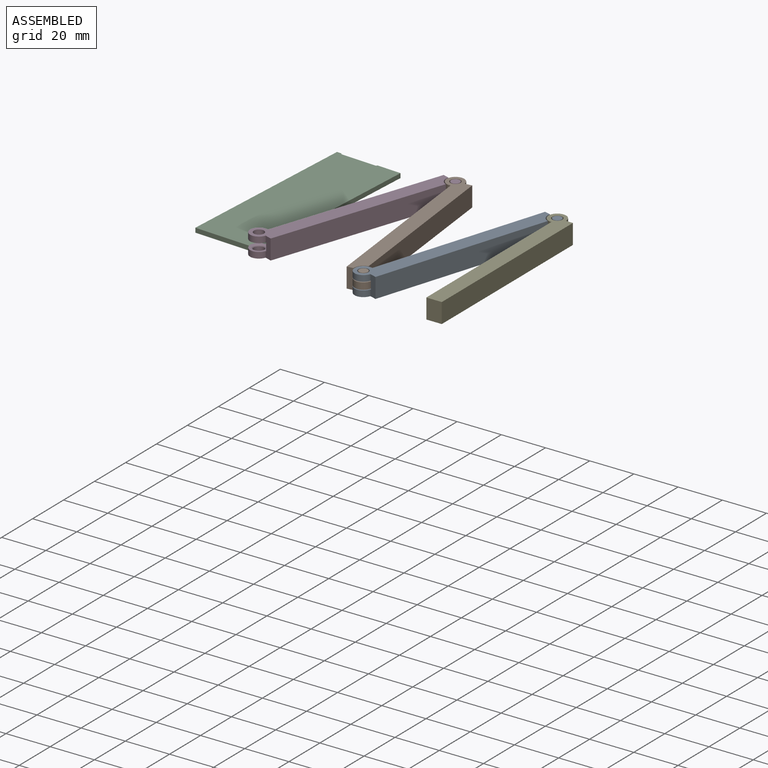
[diagram: assembled view]
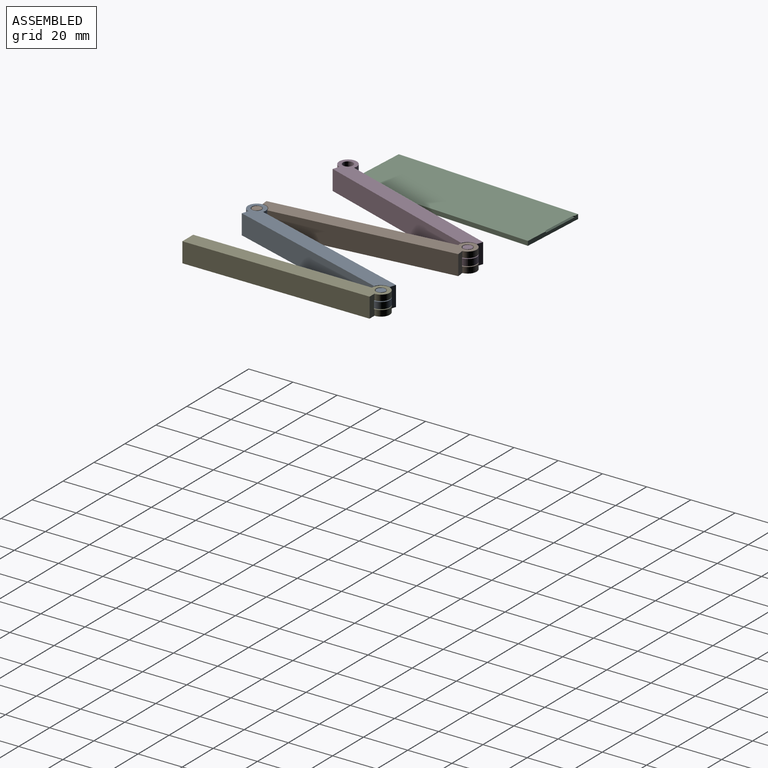
[diagram: assembled view, second angle]
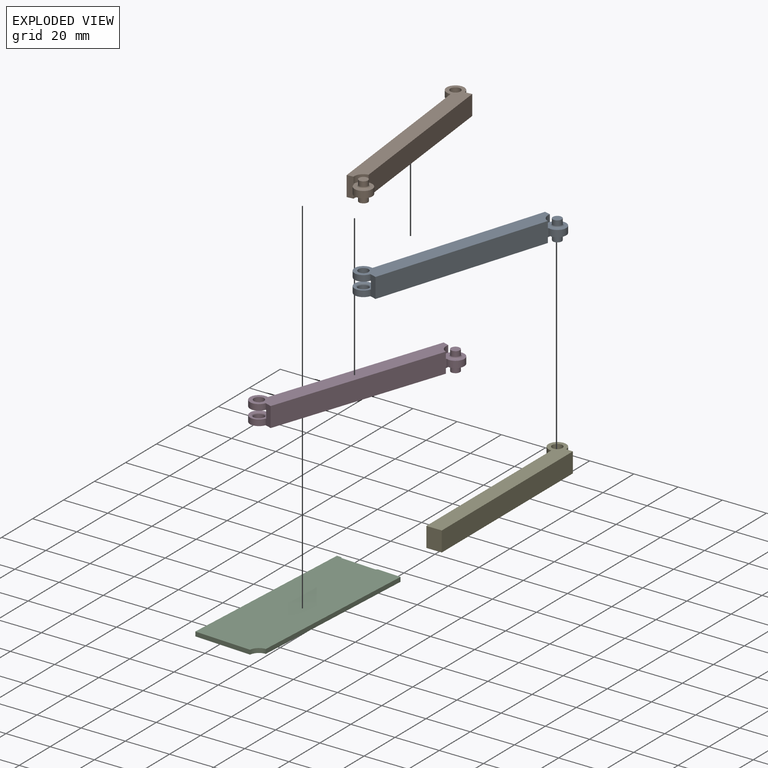
[diagram: exploded view]
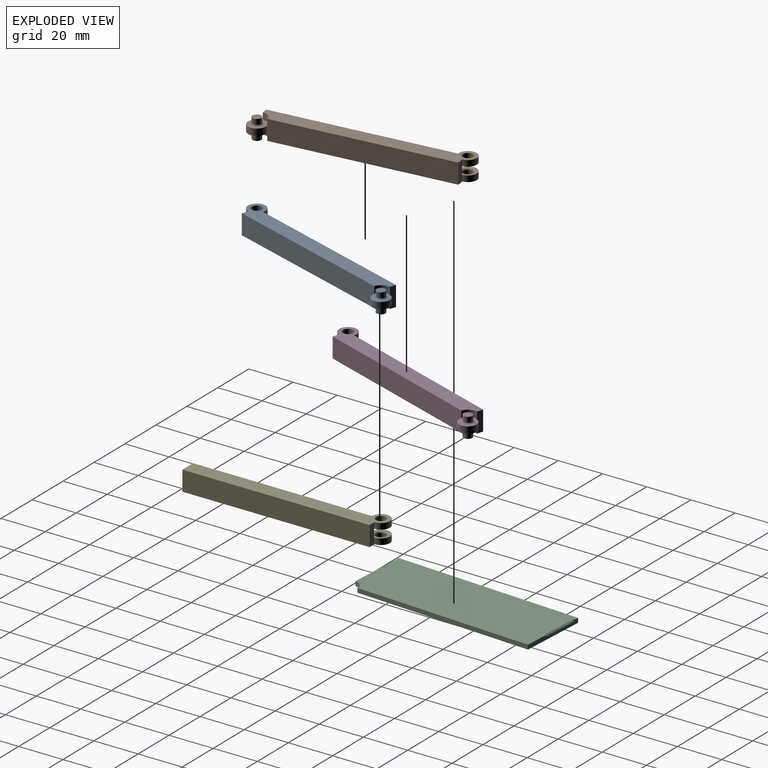
[diagram: exploded view, second angle]
ASSEMBLY  parts=5 mates=4
PART A: 26 faces, bbox 15.3x93x9 mm
  f0: plane 9x3.15mm, normal (0,1,0), area 27.3mm2, adj f1,f2,f4,f18,f19,f20,f22,f23
  f1: plane 88.85x11.15mm, normal (0,0,-1), area 601.9mm2, adj f0,f3,f4,f5,f10,f20,f21
  f2: plane 88.85x11.15mm, normal (0,0,1), area 601.9mm2, adj f0,f3,f4,f5,f9,f17,f18
  f3: plane 9x3.15mm, normal (0,-1,0), area 26.6mm2, adj f1,f2,f5,f6,f7,f8,f9,f10
  f4: plane 80.85x9mm, normal (-1,0,0), area 725.9mm2, adj f0,f1,f2,f6,f7,f8,f9,f10
  f5: plane 80.85x9mm, normal (1,0,0), area 726.6mm2, adj f1,f2,f3,f18,f19,f20,f22,f23
  f6: plane 8.3x8.3mm, normal (0,0,1), area 28.4mm2, adj f3,f4,f8,f9,f15
  f7: plane 8.3x8.3mm, normal (0,0,-1), area 28.4mm2, adj f3,f4,f8,f10,f16
  f8: cylinder r=4mm len=8mm, axis (0,0,-1), area 57.4mm2, adj f3,f4,f6,f7
  f9: cylinder r=4.3mm len=4.15mm, axis (0,0,1), area 19.4mm2, adj f2,f3,f4,f6
  f10: cylinder r=4.3mm len=4.15mm, axis (0,0,-1), area 19.4mm2, adj f1,f3,f4,f7
  f11: plane 4x4mm, normal (0,0,-1), area 12.6mm2, adj f12
  f12: cylinder r=2mm len=4mm, axis (0,0,-1), area 28.3mm2, adj f11,f16
  f13: cylinder r=2mm len=4mm, axis (0,0,-1), area 28.3mm2, adj f14,f15
  f14: plane 4x4mm, normal (0,0,1), area 12.6mm2, adj f13
  f15: torus R=2.75mm, axis (0,0,-1), area 16.8mm2, adj f6,f13
  f16: torus R=2.75mm, axis (0,0,1), area 16.8mm2, adj f7,f12
  f17: cylinder r=2.3mm len=4.6mm, axis (0,0,1), area 28.2mm2, adj f2,f25
  f18: cylinder r=4mm len=8mm, axis (0,0,1), area 51.7mm2, adj f0,f2,f5,f19
  f19: plane 8.3x8.3mm, normal (0,0,-1), area 22.9mm2, adj f0,f5,f18,f23,f25
  f20: cylinder r=4mm len=8mm, axis (0,0,-1), area 51.7mm2, adj f0,f1,f5,f22
  f21: cylinder r=2.3mm len=4.6mm, axis (0,0,-1), area 28.2mm2, adj f1,f24
  f22: plane 8.3x8.3mm, normal (0,0,1), area 22.9mm2, adj f0,f5,f20,f23,f24
  f23: cylinder r=4.3mm len=4.15mm, axis (0,0,-1), area 23.2mm2, adj f0,f5,f19,f22
  f24: torus R=3.05mm, axis (0,0,-1), area 19mm2, adj f21,f22
  f25: torus R=3.05mm, axis (0,0,1), area 19mm2, adj f17,f19
PART B: same geometry as A
PART C: 13 faces, bbox 30x84.7x2 mm
  f0: plane 84.7x30mm, normal (0,0,1), area 2527.7mm2, adj f3,f8,f9,f10,f11
  f1: plane 16.12x8.44mm, normal (0,0,-1), area 129.7mm2, adj f2,f12
  f2: plane 17.26x0.56mm, normal (0,0.71,-0.71), area 13.3mm2, adj f1,f4,f5,f6,f7,f9
  f3: cylinder r=4.3mm len=4.15mm, axis (0,0,1), area 12.9mm2, adj f0,f10,f11,f12
  f4: plane 0.56x0.56mm, normal (0.67,0.75,0), area 0.2mm2, adj f2,f5,f9,f12
  f5: plane 0.06x0.06mm, normal (0.99,0.11,0), area 0mm2, adj f2,f4,f12
  f6: plane 0.56x0.56mm, normal (-0.67,0.75,0), area 0.2mm2, adj f2,f7,f9,f12
  f7: plane 0.06x0.06mm, normal (-0.99,0.11,0), area 0mm2, adj f2,f6,f12
  f8: plane 84.7x2mm, normal (1,0,0), area 169.4mm2, adj f0,f9,f11,f12
  f9: plane 30x2mm, normal (0,1,0), area 50.3mm2, adj f0,f2,f4,f6,f8,f10,f12
  f10: plane 80.55x2mm, normal (-1,0,0), area 161.1mm2, adj f0,f3,f9,f12
  f11: plane 25.85x2mm, normal (0,-1,0), area 51.7mm2, adj f0,f3,f8,f12
  f12: plane 84.7x30mm, normal (0,0,-1), area 2388.7mm2, adj f1,f3,f4,f5,f6,f7,f8,f9
PART D: same geometry as A
PART E: 15 faces, bbox 11.2x88.9x9 mm
  f0: plane 9x3.15mm, normal (0,-1,0), area 27.3mm2, adj f3,f4,f5,f6,f7,f8,f9,f10
  f1: plane 80.85x9mm, normal (1,0,0), area 726.6mm2, adj f2,f3,f4,f6,f7,f8,f9,f10
  f2: plane 9x7mm, normal (0,1,0), area 63mm2, adj f1,f3,f4,f5
  f3: plane 88.85x11.15mm, normal (0,0,1), area 615.2mm2, adj f0,f1,f2,f5,f6,f12
  f4: plane 88.85x11.15mm, normal (0,0,-1), area 615.2mm2, adj f0,f1,f2,f5,f8,f11
  f5: plane 84.7x9mm, normal (-1,0,0), area 762.3mm2, adj f0,f2,f3,f4
  f6: cylinder r=4mm len=8mm, axis (0,0,1), area 51.7mm2, adj f0,f1,f3,f7
  f7: plane 8.3x8.3mm, normal (0,0,-1), area 22.9mm2, adj f0,f1,f6,f10,f13
  f8: cylinder r=4mm len=8mm, axis (0,0,-1), area 51.7mm2, adj f0,f1,f4,f9
  f9: plane 8.3x8.3mm, normal (0,0,1), area 22.9mm2, adj f0,f1,f8,f10,f14
  f10: cylinder r=4.3mm len=4.15mm, axis (0,0,-1), area 23.2mm2, adj f0,f1,f7,f9
  f11: cylinder r=2.3mm len=4.6mm, axis (0,0,-1), area 28.2mm2, adj f4,f14
  f12: cylinder r=2.3mm len=4.6mm, axis (0,0,-1), area 28.2mm2, adj f3,f13
  f13: torus R=3.05mm, axis (0,0,1), area 19mm2, adj f7,f12
  f14: torus R=3.05mm, axis (0,0,-1), area 19mm2, adj f9,f11
PLACE A rot(axis=(0,0,1),162.5deg) t=(-2.69,-24.59,0)mm
PLACE B rot(axis=(-0.06,1,0),180deg) t=(-27.03,-18.58,0)mm
PLACE C rot(axis=(0.03,1,0),180deg) t=(-70.83,-13.81,0)mm
PLACE D rot(axis=(0,0,1),161.3deg) t=(-52.99,-19.68,0)mm
PLACE E rot(axis=(0,0,1),180deg) t=(10.3,-25,0)mm fixed
MATE revolute D.f15 <-> B.f24  axis (0,0,1) through (-44.23,22.22,4.5)mm
MATE revolute B.f16 <-> A.f25  axis (0,0,1) through (-27.31,-61.39,4.5)mm
MATE revolute E.f14 <-> A.f16  axis (0,0,-1) through (5.15,17.5,-4.5)mm
MATE revolute C.f3 <-> D.f25  axis (0,0,1) through (-78.42,-55.94,4.5)mm
